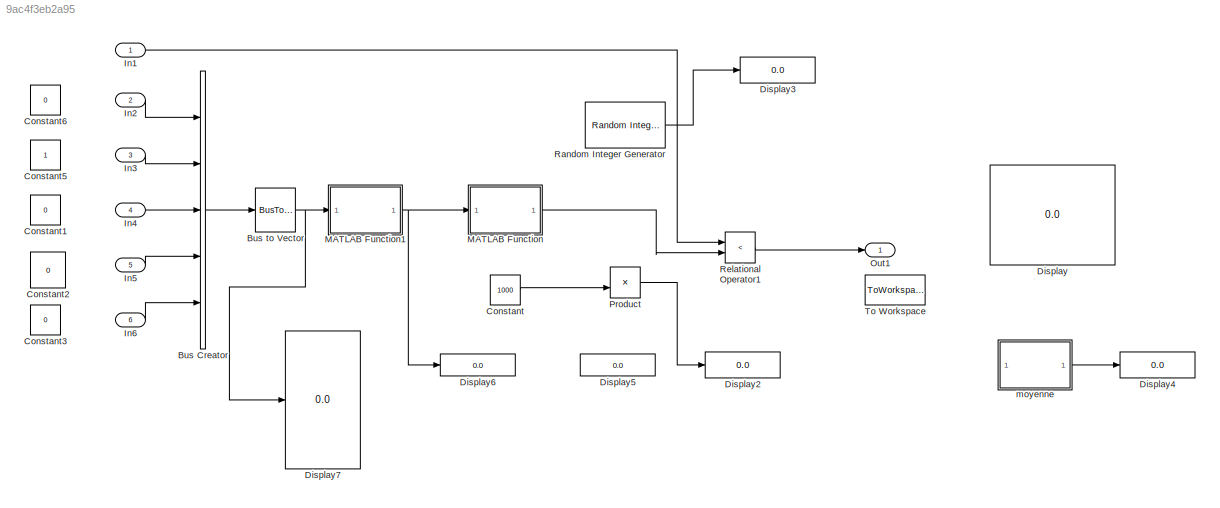
MODEL slx_9ac4f3eb2a95
KIND model
CONFIG AbsTol = auto
CONFIG EnableMultiTasking = off
CONFIG FixedStep = auto
CONFIG MaxStep = auto
CONFIG MinStep = auto
CONFIG RelTol = 1e-3
CONFIG SampleTimeConstraint = Unconstrained
CONFIG Solver = VariableStepAuto
CONFIG SolverName = VariableStepAuto
CONFIG StartTime = 0.0
CONFIG StopTime = 1
BLOCK [BusCreator] Bus Creator
  DisplayOption = bar
  InheritFromInputs = on
  Inputs = 5
  Ports = [5, 1]
BLOCK [BusToVector] Bus to Vector
BLOCK [Constant] Constant
  Commented = on
  Value = 1000
BLOCK [Constant] Constant1
  Commented = on
  OutDataTypeStr = uint8
  Value = 0
BLOCK [Constant] Constant2
  Commented = on
  OutDataTypeStr = uint8
  Value = 0
BLOCK [Constant] Constant3
  Commented = on
  OutDataTypeStr = uint8
  Value = 0
BLOCK [Constant] Constant5
  Commented = on
  OutDataTypeStr = uint8
BLOCK [Constant] Constant6
  Commented = on
  OutDataTypeStr = uint8
  Value = 0
BLOCK [Display] Display
  Commented = on
  Decimation = 1
  Ports = [1]
BLOCK [Display] Display2
  Commented = on
  Decimation = 1
  Ports = [1]
BLOCK [Display] Display3
  Commented = on
  Decimation = 1
  Ports = [1]
BLOCK [Display] Display4
  Commented = on
  Decimation = 1
  Ports = [1]
BLOCK [Display] Display5
  Commented = on
  Decimation = 1
  Ports = [1]
BLOCK [Display] Display6
  Commented = on
  Decimation = 1
  Ports = [1]
BLOCK [Display] Display7
  Commented = on
  Decimation = 1
  Ports = [1]
BLOCK [Inport] In1
  IconDisplay = Port number
BLOCK [Inport] In2
  IconDisplay = Port number
  Port = 2
BLOCK [Inport] In3
  IconDisplay = Port number
  Port = 3
BLOCK [Inport] In4
  IconDisplay = Port number
  Port = 4
BLOCK [Inport] In5
  IconDisplay = Port number
  Port = 5
BLOCK [Inport] In6
  IconDisplay = Port number
  Port = 6
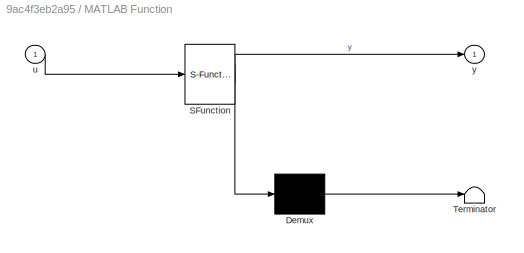
BLOCK [SubSystem] MATLAB Function
  ErrorFcn = Stateflow.Translate.translate
  PermitHierarchicalResolution = ExplicitOnly
  Ports = [1, 1]
  RequestExecContextInheritance = off
  SFBlockType = MATLAB Function
  TreatAsAtomicUnit = on
  Variant = off
BLOCK [Demux] MATLAB Function/ Demux 
  Outputs = 1
  Ports = [1, 1]
BLOCK [S-Function] MATLAB Function/ SFunction 
  EnableBusSupport = on
  FunctionName = sf_sfun
  PortCounts = [1 2]
  Ports = [1, 2]
  SFcnIsStateOwnerBlock = off
  SFunctionDeploymentMode = off
  Tag = Stateflow S-Function Noeud 2
BLOCK [Terminator] MATLAB Function/ Terminator 
BLOCK [Inport] MATLAB Function/u
  IconDisplay = Port number
BLOCK [Outport] MATLAB Function/y
  IconDisplay = Port number
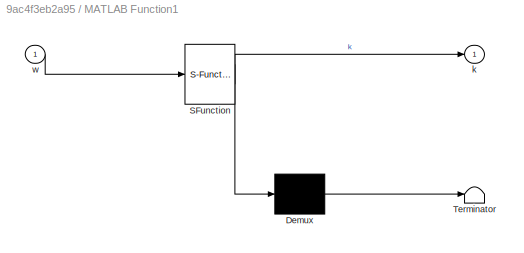
BLOCK [SubSystem] MATLAB Function1
  ErrorFcn = Stateflow.Translate.translate
  PermitHierarchicalResolution = ExplicitOnly
  Ports = [1, 1]
  RequestExecContextInheritance = off
  SFBlockType = MATLAB Function
  TreatAsAtomicUnit = on
  Variant = off
BLOCK [Demux] MATLAB Function1/ Demux 
  Outputs = 1
  Ports = [1, 1]
BLOCK [S-Function] MATLAB Function1/ SFunction 
  EnableBusSupport = on
  FunctionName = sf_sfun
  PortCounts = [1 2]
  Ports = [1, 2]
  SFcnIsStateOwnerBlock = off
  SFunctionDeploymentMode = off
  Tag = Stateflow S-Function Noeud 3
BLOCK [Terminator] MATLAB Function1/ Terminator 
BLOCK [Outport] MATLAB Function1/k
  IconDisplay = Port number
BLOCK [Inport] MATLAB Function1/w
  IconDisplay = Port number
BLOCK [Outport] Out1
  IconDisplay = Port number
BLOCK [Product] Product
  Commented = on
  InputSameDT = off
  OutDataTypeStr = uint16
  Ports = [2, 1]
  RndMeth = Floor
  SaturateOnIntegerOverflow = off
BLOCK [Reference] Random Integer Generator  REF=commrandsrc3/Random Integer
Generator
  Commented = on
  Ports = [0, 1]
  SourceBlock = commrandsrc3/Random Integer\nGenerator
  SourceProductBaseCode = CM
  SourceProductName = Communications System Toolbox
  SourceType = Random Integer Generator
BLOCK [RelationalOperator] Relational Operator1
  InputSameDT = off
  Operator = <
  OutDataTypeStr = boolean
  Ports = [2, 1]
BLOCK [ToWorkspace] To Workspace
  Commented = on
  FixptAsFi = on
  MaxDataPoints = inf
  Ports = [1]
  SampleTime = -1
  VariableName = simout
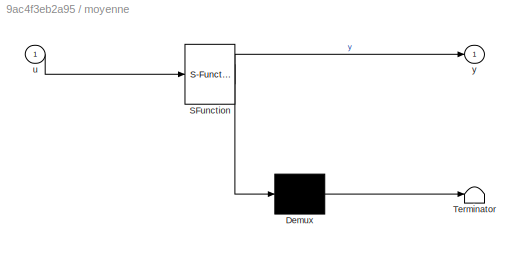
BLOCK [SubSystem] moyenne
  Commented = on
  ErrorFcn = Stateflow.Translate.translate
  PermitHierarchicalResolution = ExplicitOnly
  Ports = [1, 1]
  RequestExecContextInheritance = off
  SFBlockType = MATLAB Function
  TreatAsAtomicUnit = on
  Variant = off
BLOCK [Demux] moyenne/ Demux 
  Outputs = 1
  Ports = [1, 1]
BLOCK [S-Function] moyenne/ SFunction 
  EnableBusSupport = on
  FunctionName = sf_sfun
  PortCounts = [1 2]
  Ports = [1, 2]
  SFcnIsStateOwnerBlock = off
  SFunctionDeploymentMode = off
  Tag = Stateflow S-Function Noeud 1
BLOCK [Terminator] moyenne/ Terminator 
BLOCK [Inport] moyenne/u
  IconDisplay = Port number
BLOCK [Outport] moyenne/y
  IconDisplay = Port number
LINE Bus Creator:1 -> Bus to Vector:1
NET Bus to Vector:1 -> Display7:1, MATLAB Function1:1
LINE Constant:1 -> Product:2
LINE In1:1 -> Relational Operator1:1
LINE In2:1 -> Bus Creator:1
LINE In3:1 -> Bus Creator:2
LINE In4:1 -> Bus Creator:3
LINE In5:1 -> Bus Creator:4
LINE In6:1 -> Bus Creator:5
NET MATLAB Function1:1 -> Display6:1, MATLAB Function:1
LINE MATLAB Function:1 -> Relational Operator1:2
LINE Product:1 -> Display2:1
LINE Random Integer Generator:1 -> Display3:1
LINE Relational Operator1:1 -> Out1:1
LINE moyenne:1 -> Display4:1
note: NET lines group one-source signal fan-out (src -> all destinations, sorted); 1:1 wires keep LINE
CHART moyenne states=1 transitions=1
  STATE_LABEL 'eML_blk_kernel()'
  STATE_LABEL 'SCRIPT:\nfunction y = fcn(u)\npersistent nb_one total\nif isempty(nb_one)\n    nb_one=0;\nend\nif isempty(total)\n    total=0;\nend\nif u==1\n    nb_one = nb_one+1;\nend\ntotal = total +1;\n\ny=nb_one/total;\n'
CHART MATLAB Function states=1 transitions=1
  STATE_LABEL 'eML_blk_kernel()'
  STATE_LABEL 'SCRIPT:\nfunction y = fcn(u)\n\nMEM =[950;290;940;1];\n\ny=uint16(MEM(u+1));\n\n\n       \n        \n'
CHART MATLAB Function1 states=1 transitions=1
  STATE_LABEL 'eML_blk_kernel()'
  STATE_LABEL 'SCRIPT:\nfunction k = fcn(w)\nout =0;\n    if w(1)==1\n        out = out + 1;\n    end\n    if w(2)==1\n        out = out + 2;\n    end\n    if w(3)==1\n        out = out + 4;\n    end\n    if w(4)==1\n        out = out + 8;\n    end\n    if w(5)==1\n        out = out + 16;\n    end\nk=out;\n'
